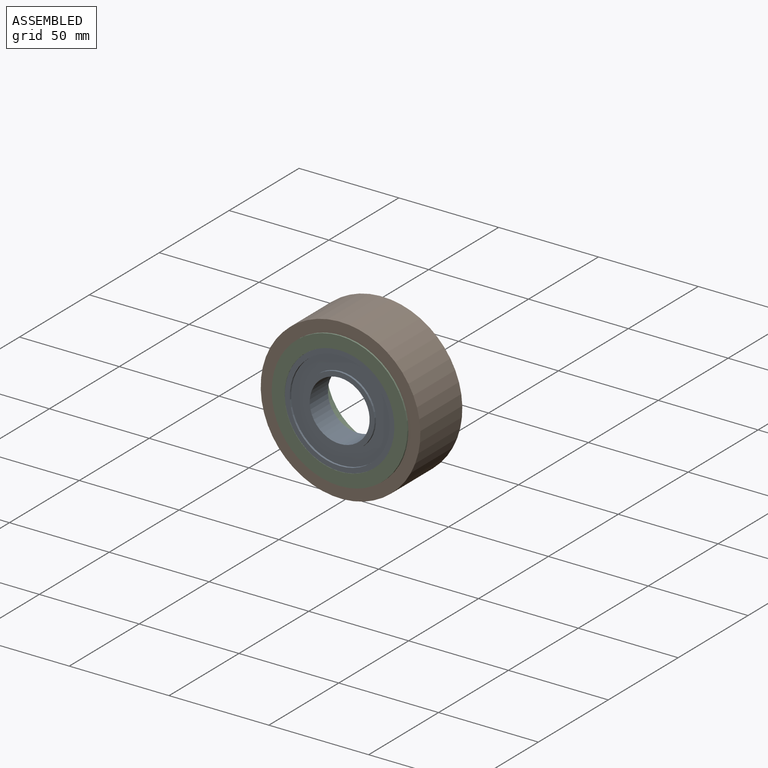
[diagram: assembled view]
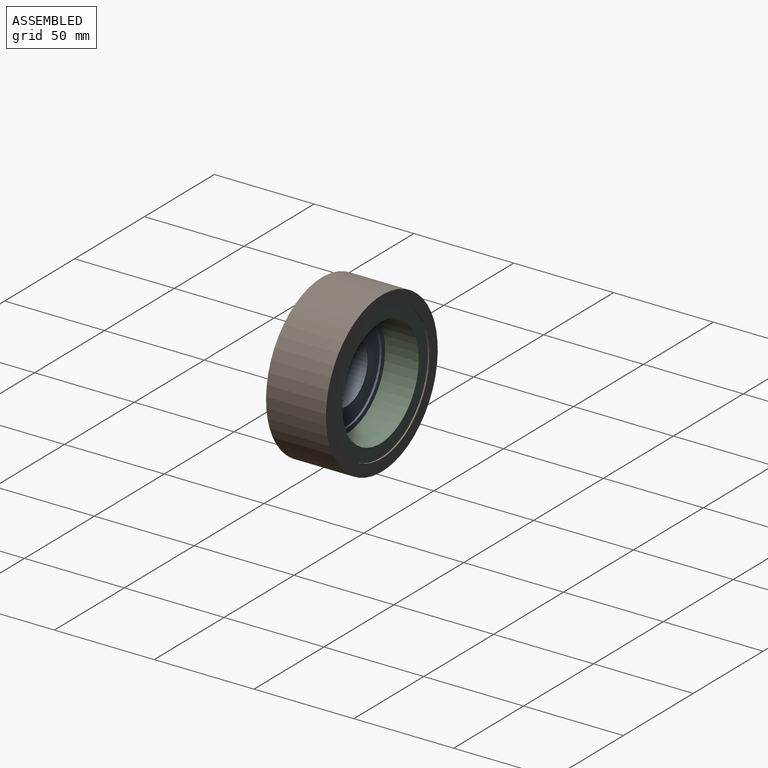
[diagram: assembled view, second angle]
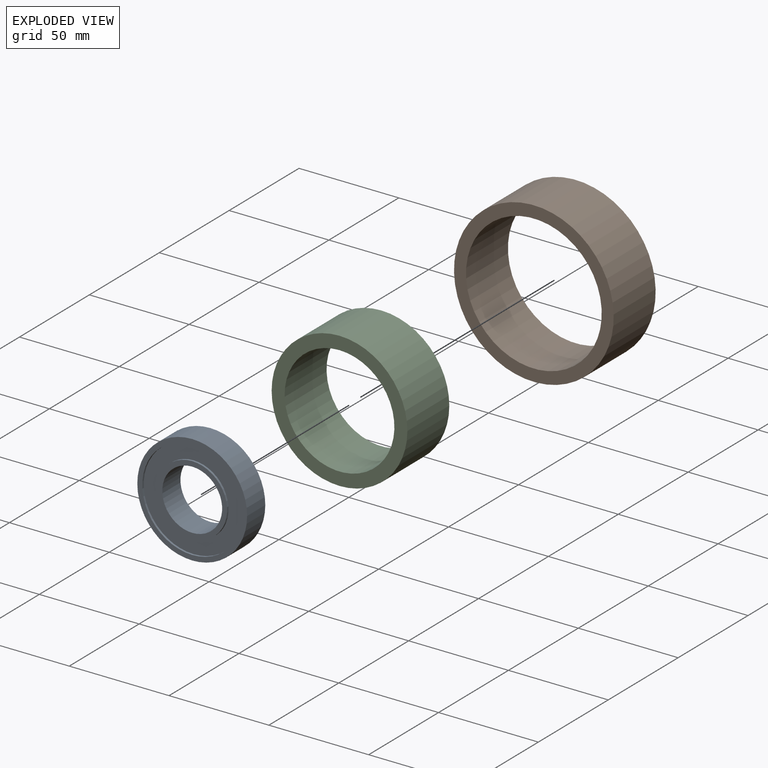
[diagram: exploded view]
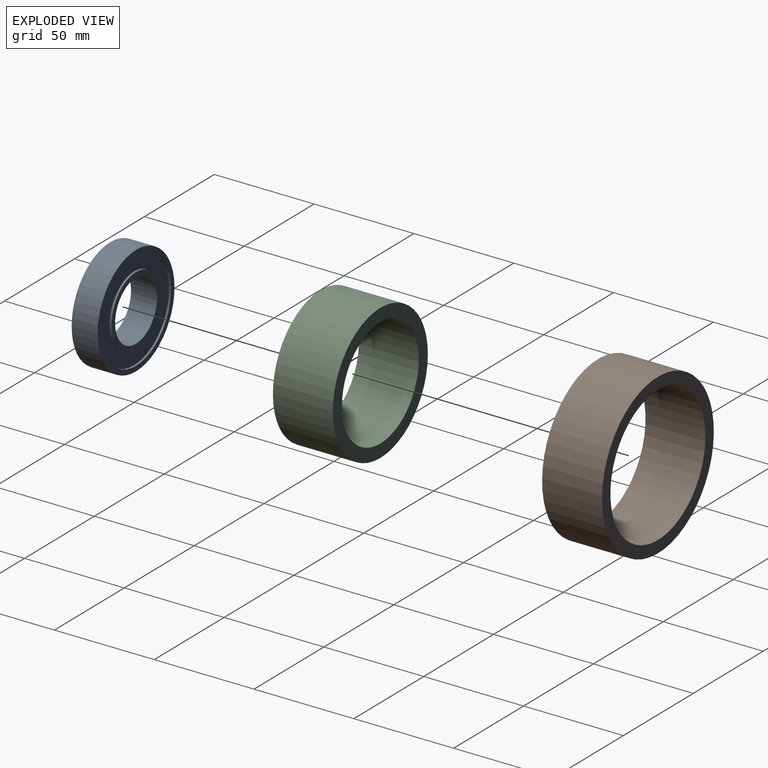
[diagram: exploded view, second angle]
ASSEMBLY  parts=3 mates=2
PART A: 12 faces, bbox 55x13x55 mm
  f0: plane 35x35mm, normal (0,1,0), area 255.3mm2, adj f2,f9
  f1: plane 35x35mm, normal (0,-1,0), area 255.3mm2, adj f2,f6
  f2: cylinder r=15mm len=30mm, axis (0,1,0), area 1225.2mm2, adj f0,f1
  f3: cylinder r=27.5mm len=55mm, axis (0,1,0), area 2246.2mm2, adj f4,f5
  f4: plane 55x55mm, normal (0,-1,0), area 412.3mm2, adj f3,f7
  f5: plane 55x55mm, normal (0,1,0), area 412.3mm2, adj f3,f10
  f6: cylinder r=17.5mm len=35mm, axis (0,-1,0), area 110mm2, adj f1,f8
  f7: cylinder r=25mm len=50mm, axis (0,-1,0), area 157.1mm2, adj f4,f8
  f8: plane 50x50mm, normal (0,-1,0), area 1001.4mm2, adj f6,f7
  f9: cylinder r=17.5mm len=35mm, axis (0,1,0), area 110mm2, adj f0,f11
  f10: cylinder r=25mm len=50mm, axis (0,1,0), area 157.1mm2, adj f5,f11
  f11: plane 50x50mm, normal (0,1,0), area 1001.4mm2, adj f9,f10
PART B: 4 faces, bbox 80x80x30 mm
  f0: cylinder r=34mm len=68mm, axis (0,0,-1), area 6408.8mm2, adj f2,f3
  f1: cylinder r=40mm len=80mm, axis (0,0,-1), area 7539.8mm2, adj f2,f3
  f2: plane 80x80mm, normal (0,0,1), area 1394.9mm2, adj f0,f1
  f3: plane 80x80mm, normal (0,0,-1), area 1394.9mm2, adj f0,f1
PART C: 4 faces, bbox 68x68x30 mm
  f0: cylinder r=27.5mm len=55mm, axis (0,0,-1), area 5183.6mm2, adj f2,f3
  f1: cylinder r=34mm len=68mm, axis (0,0,-1), area 6408.8mm2, adj f2,f3
  f2: plane 68x68mm, normal (0,0,1), area 1255.9mm2, adj f0,f1
  f3: plane 68x68mm, normal (0,0,-1), area 1255.9mm2, adj f0,f1
PLACE A t=(0.06,6.4,-0.2)mm fixed
PLACE B rot(axis=(0.13,-0.7,0.7),165.4deg) t=(0.06,24.03,-0.2)mm
PLACE C rot(axis=(0.58,-0.58,0.58),120deg) t=(0.06,23.28,-0.2)mm
MATE slider C.f0 <-> A.f3  axis (0,1,0) through (0.06,8.28,-0.2)mm
MATE cylindrical B.f0 <-> C.f1  axis (0,1,0) through (0.06,9.03,-0.2)mm
